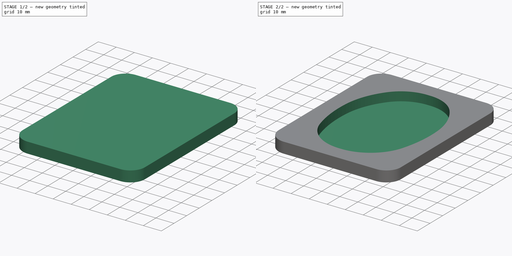
[diagram: build sequence overview — one tinted view per stage of 2, left to right]
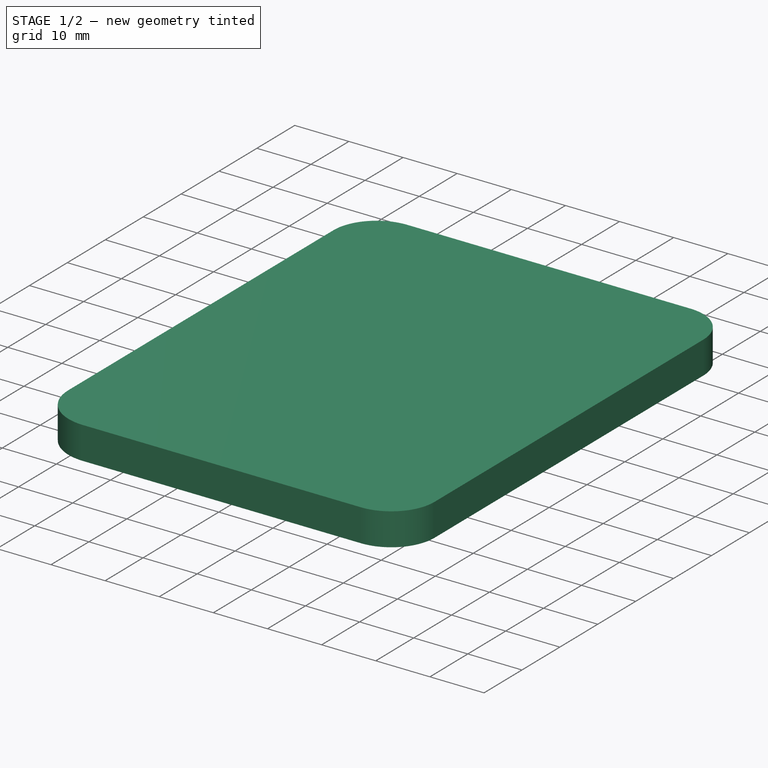
[diagram: stage 1 of 2 — iso view after this stage's code; geometry added in this stage tinted green]
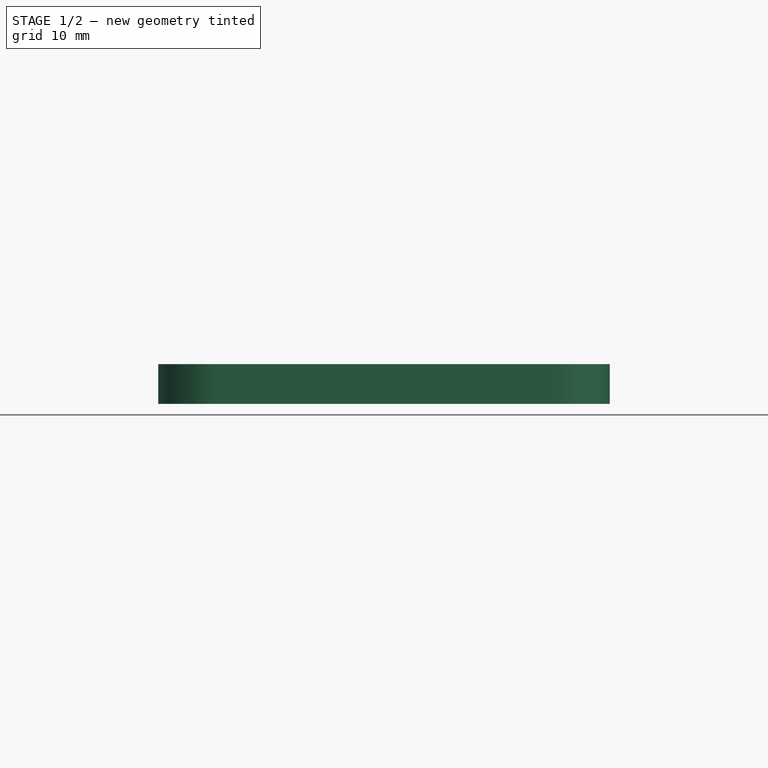
[diagram: stage 1 of 2 — front view after this stage's code; geometry added in this stage tinted green]
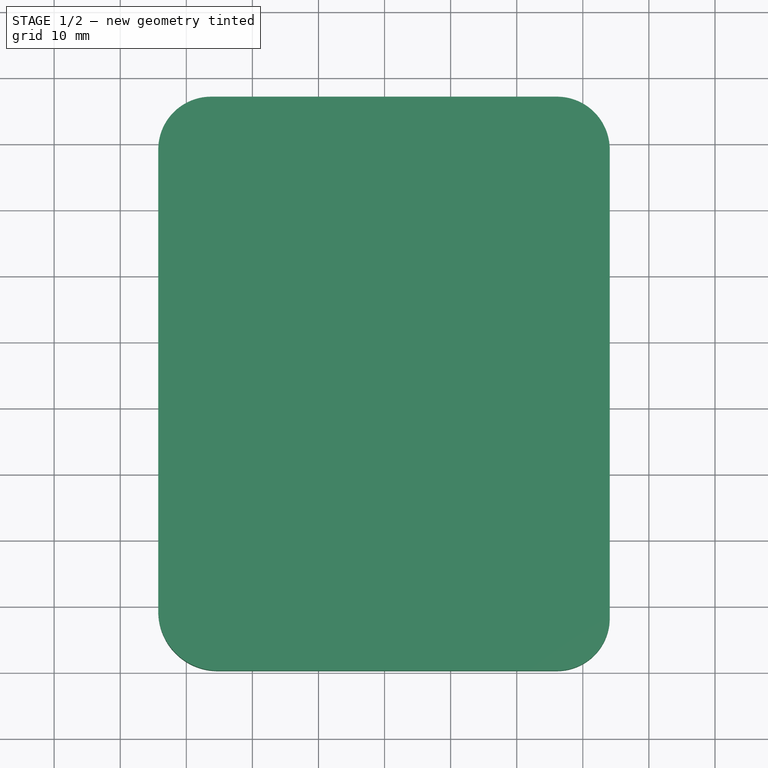
[diagram: stage 1 of 2 — top view after this stage's code; geometry added in this stage tinted green]
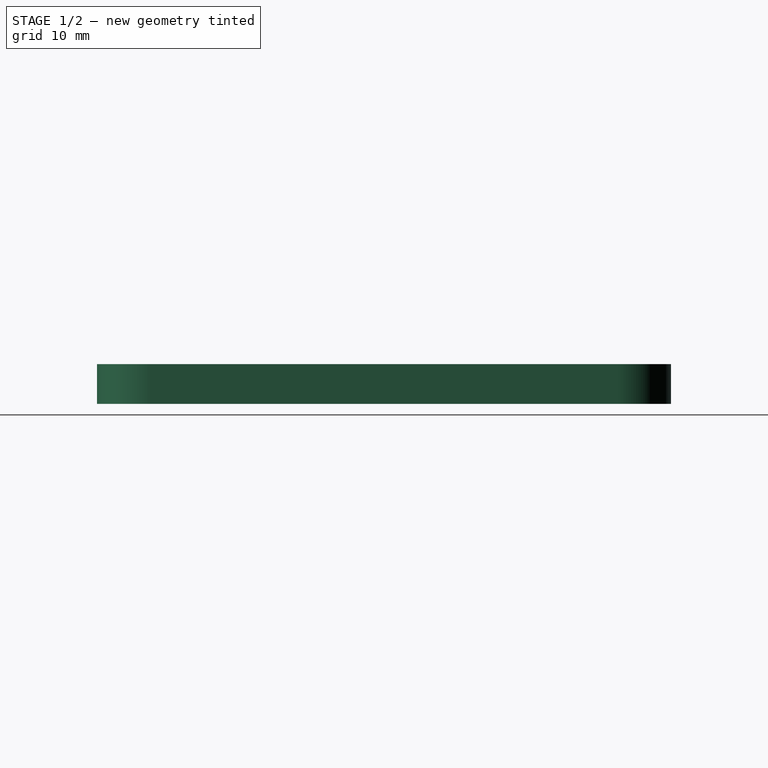
[diagram: stage 1 of 2 — right view after this stage's code; geometry added in this stage tinted green]
FCSTD DOCUMENT  (FreeCAD 0.22R37841 (Git))
Label: SerterHolder
License: All rights reserved
LicenseURL: http://en.wikipedia.org/wiki/All_rights_reserved
objects: Sketcher::SketchObject×3, Part::Offset2D×2, Image::ImagePlane×1, Part::Feature×1, PartDesign::Pad×1, PartDesign::Pocket×1, PartDesign::Body×1
note: 11 computed .brp shape members not serialized (recipe doc carries the construction recipe); baked Part::Feature solids carry a one-line shape summary decoded from their .brp

FEATURE [Image::ImagePlane] Screenshot_2024_12_17_at_13  label="Screenshot 2024-12-17 at 13"
  Placement = pos=(5,-2.5,0) rot=(0,0,1;0rad)
  XSize = 90.84
  YSize = 125.88
FEATURE [Part::Feature] Sketch002
  shape: bbox 54.09 x 72.92 x 2e-07 mm, 0 faces, 0 solids (baked)
FEATURE [Sketcher::SketchObject] Sketch004
  AttachmentSupport = -> [XY_Plane]
  FullyConstrained = false
  MapMode = 5
  sketch-geometry (12):
    g0: LineSegment StartX=-34.2473 StartY=29.1421 StartZ=0 EndX=-34.2473 EndY=-40.7319 EndZ=0
    g1: LineSegment StartX=-25.2473 StartY=-49.7319 StartZ=0 EndX=26.074 EndY=-49.7319 EndZ=0
    g2: LineSegment StartX=34.074 StartY=-41.7319 StartZ=0 EndX=34.074 EndY=29.1421 EndZ=0
    g3: LineSegment StartX=26.074 StartY=37.1421 StartZ=0 EndX=-26.2473 EndY=37.1421 EndZ=0
    g4: ArcOfCircle CenterX=-26.2473 CenterY=29.1421 CenterZ=0 NormalX=0 NormalY=0 NormalZ=1 AngleXU=0 Radius=8 StartAngle=1.5708 EndAngle=3.14159
    g5: GeomPoint X=-34.2473 Y=37.1421 Z=0
    g6: ArcOfCircle CenterX=-25.2473 CenterY=-40.7319 CenterZ=0 NormalX=0 NormalY=0 NormalZ=1 AngleXU=0 Radius=9 StartAngle=3.14159 EndAngle=4.71239
    g7: GeomPoint X=-34.2473 Y=-49.7319 Z=0
    g8: ArcOfCircle CenterX=26.074 CenterY=-41.7319 CenterZ=0 NormalX=0 NormalY=0 NormalZ=1 AngleXU=0 Radius=8 StartAngle=4.71239 EndAngle=6.28319
    g9: GeomPoint X=34.074 Y=-49.7319 Z=0
    g10: ArcOfCircle CenterX=26.074 CenterY=29.1421 CenterZ=0 NormalX=0 NormalY=0 NormalZ=1 AngleXU=0 Radius=8 StartAngle=1e-16 EndAngle=1.5708
    g11: GeomPoint X=34.074 Y=37.1421 Z=0
  constraints (24):
    c: Vertical(g0)
    c: Vertical(g2)
    c: Horizontal(g1)
    c: Horizontal(g3)
    c: PointOnObject(g5,g3)
    c: PointOnObject(g5,g0)
    c: Tangent(g3,g4) = -1.5708
    c: Tangent(g0,g4) = -1.5708
    c: PointOnObject(g7,g0)
    c: PointOnObject(g7,g1)
    c: Tangent(g0,g6) = -1.5708
    c: Tangent(g1,g6) = -1.5708
    c: PointOnObject(g9,g1)
    c: PointOnObject(g9,g2)
    c: Tangent(g1,g8) = -1.5708
    c: Tangent(g2,g8) = -1.5708
    c: PointOnObject(g11,g3)
    c: PointOnObject(g11,g2)
    c: Tangent(g3,g10) = -1.5708
    c: Tangent(g2,g10) = -1.5708
    c: Radius(g4) = 8
    c: Radius(g10) = 8
    c: Radius(g8) = 8
    c: Radius(g6) = 9
FEATURE [PartDesign::Pad] Pad
  Direction = (0,0,1)
  Length = 6
  Length2 = 10
  Profile = -> Sketch004
  ReferenceAxis = -> Sketch004 [N_Axis]
  Suppressed = false
  Type = 0
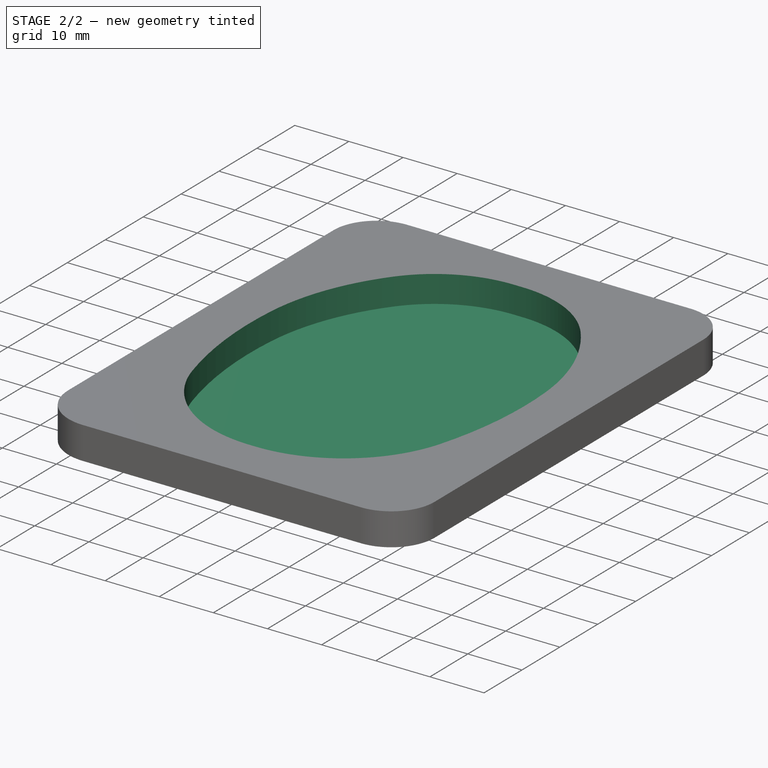
[diagram: stage 2 of 2 — iso view after this stage's code; geometry added in this stage tinted green]
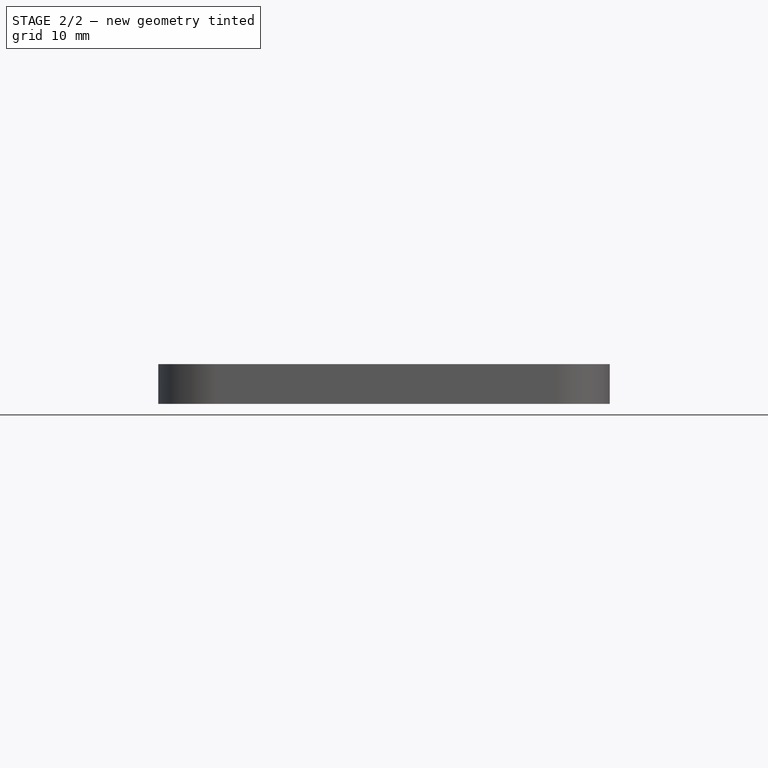
[diagram: stage 2 of 2 — front view after this stage's code; geometry added in this stage tinted green]
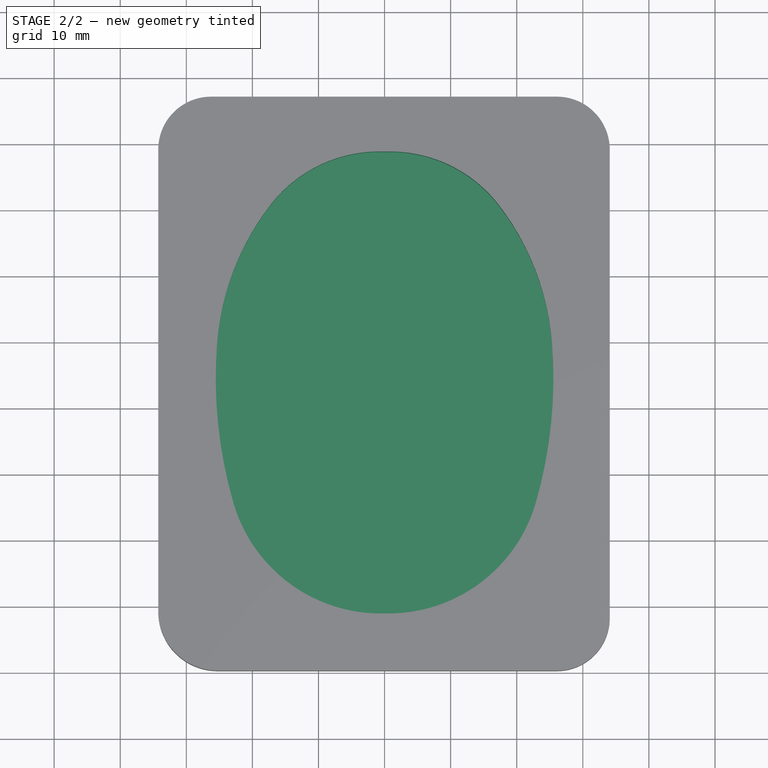
[diagram: stage 2 of 2 — top view after this stage's code; geometry added in this stage tinted green]
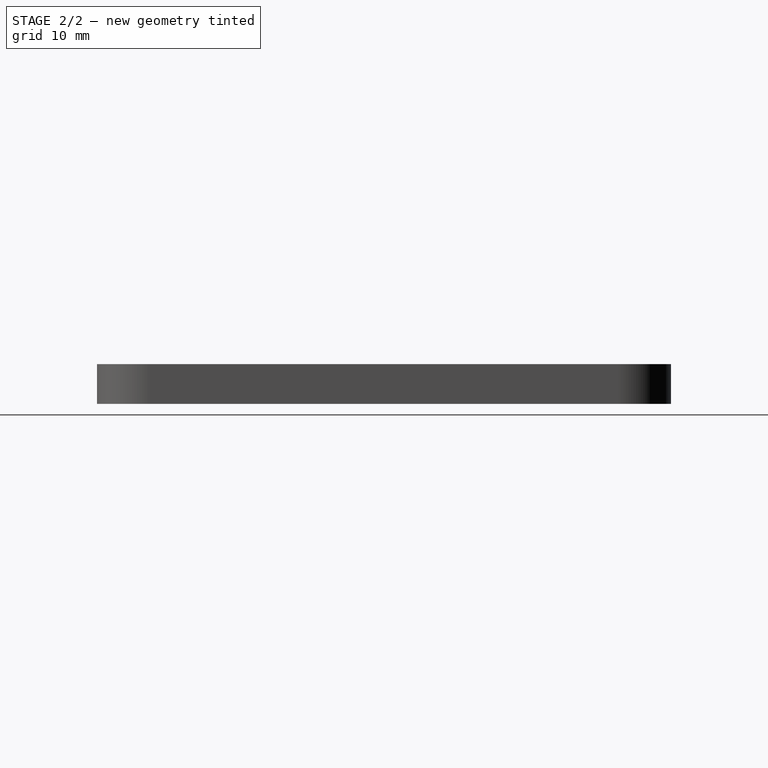
[diagram: stage 2 of 2 — right view after this stage's code; geometry added in this stage tinted green]
FEATURE [Sketcher::SketchObject] Sketch001
  AttachmentSupport = -> [Pad]
  FullyConstrained = false
  MapMode = 5
  Placement = pos=(0,0,6) rot=(0,0,1;0rad)
  sketch-geometry (12):
    g0: ArcOfCircle CenterX=-0.83388 CenterY=8.06945 CenterZ=0 NormalX=0 NormalY=0 NormalZ=1 AngleXU=0 Radius=22.2731 StartAngle=1.55805 EndAngle=2.48405
    g1: ArcOfCircle CenterX=13.7771 CenterY=-3.21286 CenterZ=0 NormalX=0 NormalY=0 NormalZ=1 AngleXU=0 Radius=40.7331 StartAngle=2.48405 EndAngle=3.06263
    g2: ArcOfCircle CenterX=42.3866 CenterY=-5.47651 CenterZ=0 NormalX=0 NormalY=0 NormalZ=1 AngleXU=0 Radius=69.432 StartAngle=3.06263 EndAngle=3.42209
    g3: ArcOfCircle CenterX=-0.575234 CenterY=-17.8533 CenterZ=0 NormalX=0 NormalY=0 NormalZ=1 AngleXU=0 Radius=24.7229 StartAngle=3.42209 EndAngle=4.72629
    g4: LineSegment StartX=-0.55 StartY=30.3408 StartZ=0 EndX=0 EndY=30.3408 EndZ=0
    g5: LineSegment StartX=-0.231547 StartY=-42.5739 StartZ=0 EndX=0 EndY=-42.5739 EndZ=0
    g6: ArcOfCircle CenterX=0.83388 CenterY=8.06945 CenterZ=0 NormalX=0 NormalY=0 NormalZ=1 AngleXU=0 Radius=22.2731 StartAngle=0.657545 EndAngle=1.58354
    g7: ArcOfCircle CenterX=-13.7771 CenterY=-3.21286 CenterZ=0 NormalX=0 NormalY=0 NormalZ=1 AngleXU=0 Radius=40.7331 StartAngle=0.0789579 EndAngle=0.657545
    g8: ArcOfCircle CenterX=-42.3866 CenterY=-5.47651 CenterZ=0 NormalX=0 NormalY=0 NormalZ=1 AngleXU=0 Radius=69.432 StartAngle=6.00269 EndAngle=6.36214
    g9: ArcOfCircle CenterX=0.575234 CenterY=-17.8533 CenterZ=0 NormalX=0 NormalY=0 NormalZ=1 AngleXU=0 Radius=24.7229 StartAngle=4.69849 EndAngle=6.00269
    g10: LineSegment StartX=0.55 StartY=30.3408 StartZ=0 EndX=0 EndY=30.3408 EndZ=0
    g11: LineSegment StartX=0.231547 StartY=-42.5739 StartZ=0 EndX=0 EndY=-42.5739 EndZ=0
  constraints (19):
    c: Tangent(g0,g1) = -1.5708
    c: PointOnObject(g1,g-1)
    c: Tangent(g1,g2) = -1.5708
    c: Tangent(g2,g3) = -1.5708
    c: Distance(g4) = 0.55
    c: Horizontal(g4)
    c: PointOnObject(g4,g-2)
    c: Coincident(g0,g4)
    c: Horizontal(g5)
    c: Coincident(g5,g3)
    c: PointOnObject(g5,g-2)
    c: Tangent(g6,g7) = -1.5708
    c: Tangent(g7,g8) = -1.5708
    c: Tangent(g8,g9) = -1.5708
    c: Distance(g10) = 0.55
    c: Horizontal(g10)
    c: Coincident(g6,g10)
    c: Horizontal(g11)
    c: Coincident(g11,g9)
FEATURE [Part::Offset2D] Offset2D
  Fill = false
  Intersection = false
  Join = 0
  Mode = 1
  SelfIntersection = false
  Source = -> Sketch001
  Value = -2
FEATURE [Part::Offset2D] Offset2D001
  Fill = false
  Intersection = false
  Join = 0
  Mode = 1
  SelfIntersection = false
  Source = -> Sketch001
  Value = -1.5
FEATURE [Sketcher::SketchObject] Sketch
  FullyConstrained = false
  Placement = pos=(0,0,6) rot=(0,0,1;0rad)
  sketch-geometry (16):
    g0: ArcOfCircle CenterX=0.575234 CenterY=-17.8533 CenterZ=0 NormalX=0 NormalY=0 NormalZ=1 AngleXU=0 Radius=23.2229 StartAngle=4.69849 EndAngle=6.00269
    g1: ArcOfCircle CenterX=-42.3866 CenterY=-5.47651 CenterZ=0 NormalX=0 NormalY=0 NormalZ=1 AngleXU=0 Radius=67.932 StartAngle=6.00269 EndAngle=6.36214
    g2: ArcOfCircle CenterX=-13.7771 CenterY=-3.21286 CenterZ=0 NormalX=0 NormalY=0 NormalZ=1 AngleXU=0 Radius=39.2331 StartAngle=0.0789579 EndAngle=0.657545
    g3: ArcOfCircle CenterX=0.83388 CenterY=8.06945 CenterZ=0 NormalX=0 NormalY=0 NormalZ=1 AngleXU=0 Radius=20.7731 StartAngle=0.657545 EndAngle=1.58354
    g4: ArcOfCircle CenterX=0.55 CenterY=30.3408 CenterZ=0 NormalX=0 NormalY=0 NormalZ=1 AngleXU=0.0127458 Radius=1.5 StartAngle=4.69964 EndAngle=4.71239
    g5: LineSegment StartX=0.55 StartY=28.8408 StartZ=0 EndX=0 EndY=28.8408 EndZ=0
    g6: LineSegment StartX=-0.55 StartY=28.8408 StartZ=0 EndX=0 EndY=28.8408 EndZ=0
    g7: ArcOfCircle CenterX=-0.55 CenterY=30.3408 CenterZ=0 NormalX=0 NormalY=0 NormalZ=1 AngleXU=0 Radius=1.5 StartAngle=4.69964 EndAngle=4.71239
    g8: ArcOfCircle CenterX=-0.83388 CenterY=8.06945 CenterZ=0 NormalX=0 NormalY=0 NormalZ=1 AngleXU=0 Radius=20.7731 StartAngle=1.55805 EndAngle=2.48405
    g9: ArcOfCircle CenterX=13.7771 CenterY=-3.21286 CenterZ=0 NormalX=0 NormalY=0 NormalZ=1 AngleXU=0 Radius=39.2331 StartAngle=2.48405 EndAngle=3.06263
    g10: ArcOfCircle CenterX=42.3866 CenterY=-5.47651 CenterZ=0 NormalX=0 NormalY=0 NormalZ=1 AngleXU=0 Radius=67.932 StartAngle=3.06263 EndAngle=3.42209
    g11: ArcOfCircle CenterX=-0.575234 CenterY=-17.8533 CenterZ=0 NormalX=0 NormalY=0 NormalZ=1 AngleXU=0 Radius=23.2229 StartAngle=3.42209 EndAngle=4.72629
    g12: ArcOfCircle CenterX=-0.231547 CenterY=-42.5739 CenterZ=0 NormalX=0 NormalY=0 NormalZ=1 AngleXU=-3.12769 Radius=1.5 StartAngle=4.69849 EndAngle=4.71239
    g13: LineSegment StartX=-0.231547 StartY=-41.0739 StartZ=0 EndX=0 EndY=-41.0739 EndZ=0
    g14: LineSegment StartX=0.231547 StartY=-41.0739 StartZ=0 EndX=0 EndY=-41.0739 EndZ=0
    g15: ArcOfCircle CenterX=0.231547 CenterY=-42.5739 CenterZ=0 NormalX=0 NormalY=0 NormalZ=1 AngleXU=-3.14159 Radius=1.5 StartAngle=4.69849 EndAngle=4.71239
  constraints (20):
    c: Coincident(g0,g1)
    c: Coincident(g1,g2)
    c: Coincident(g2,g3)
    c: Coincident(g3,g4)
    c: Coincident(g4,g5)
    c: Horizontal(g5)
    c: Coincident(g5,g6)
    c: Horizontal(g6)
    c: Coincident(g6,g7)
    c: Coincident(g7,g8)
    c: Coincident(g8,g9)
    c: Coincident(g9,g10)
    c: Coincident(g10,g11)
    c: Coincident(g11,g12)
    c: Coincident(g12,g13)
    c: Horizontal(g13)
    c: Coincident(g13,g14)
    c: Horizontal(g14)
    c: Coincident(g14,g15)
    c: Coincident(g15,g0)
FEATURE [PartDesign::Pocket] Pocket
  BaseFeature = -> Pad
  Direction = (0,0,-1)
  Length = 5
  Length2 = 5
  Profile = -> Sketch
  ReferenceAxis = -> Sketch [N_Axis]
  Suppressed = false
  Type = 0
FEATURE [PartDesign::Body] Body
  AllowCompound = false
  Group = -> [Sketch004,Pad,Sketch001,Sketch,Pocket]
  Origin = -> Origin
  Tip = -> Pocket
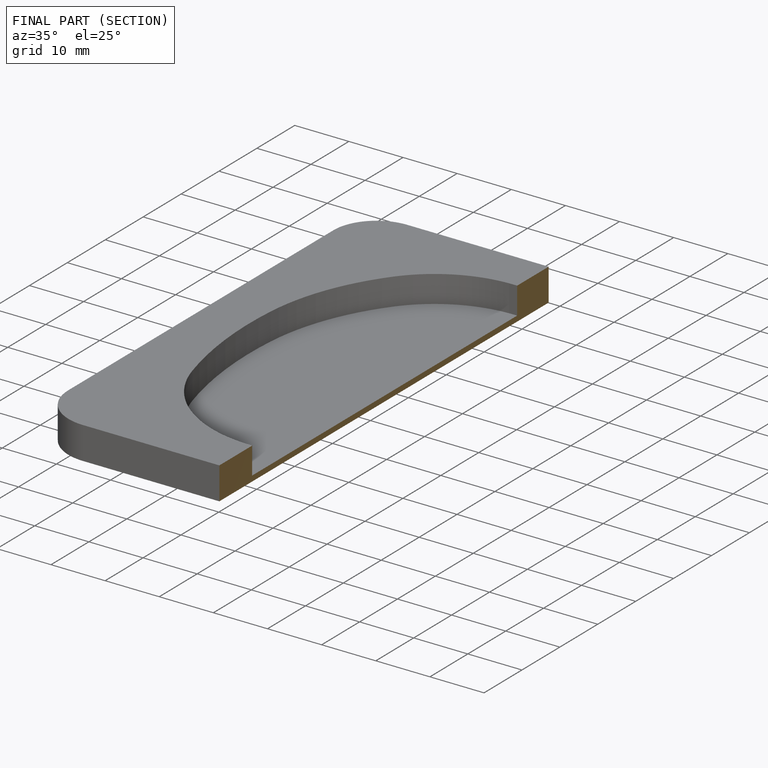
[diagram: finished part — half-section view (interior)]
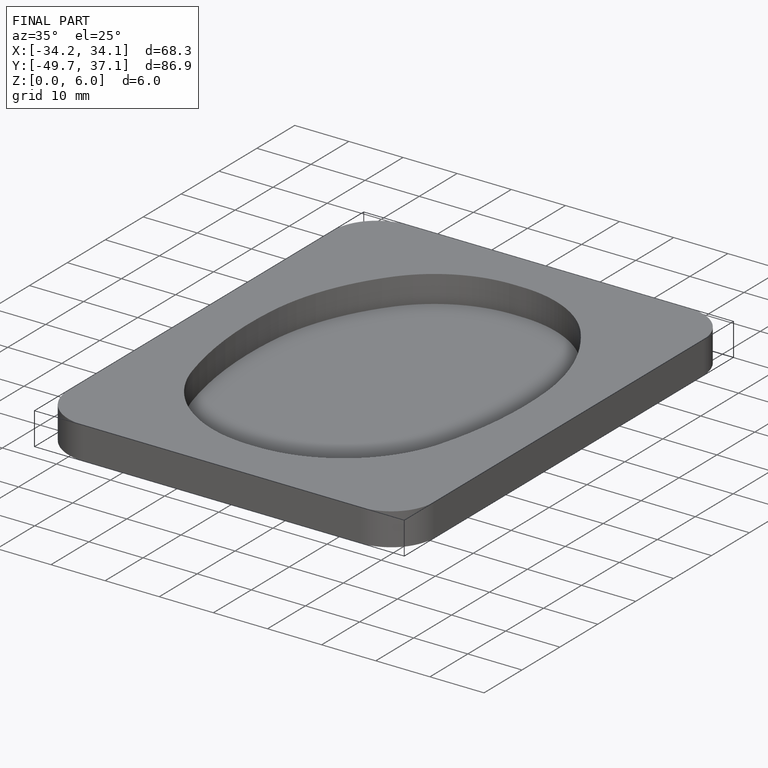
[diagram: finished part — iso view with bounding-box wireframe]
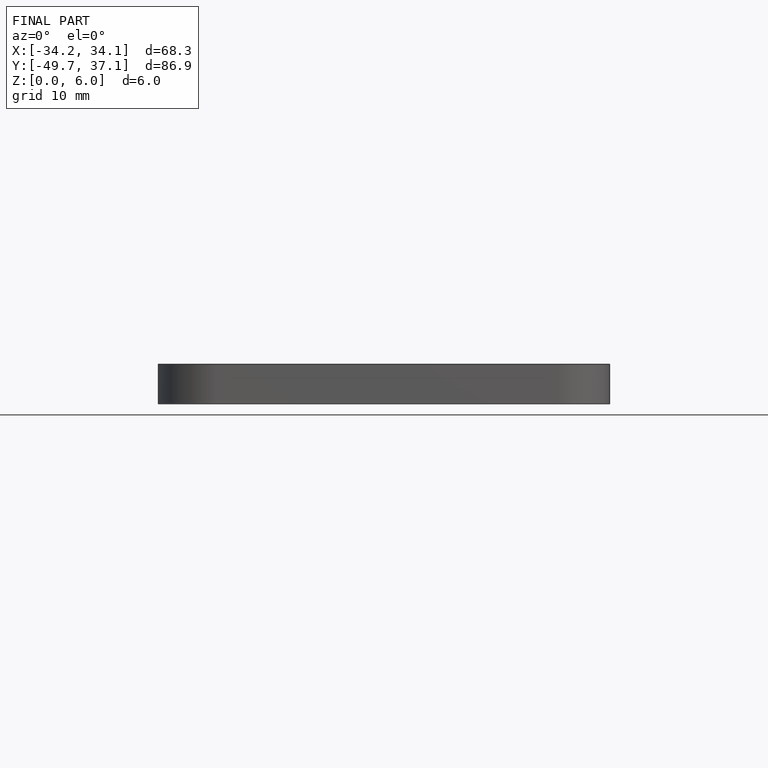
[diagram: finished part — front view with bounding-box wireframe]
